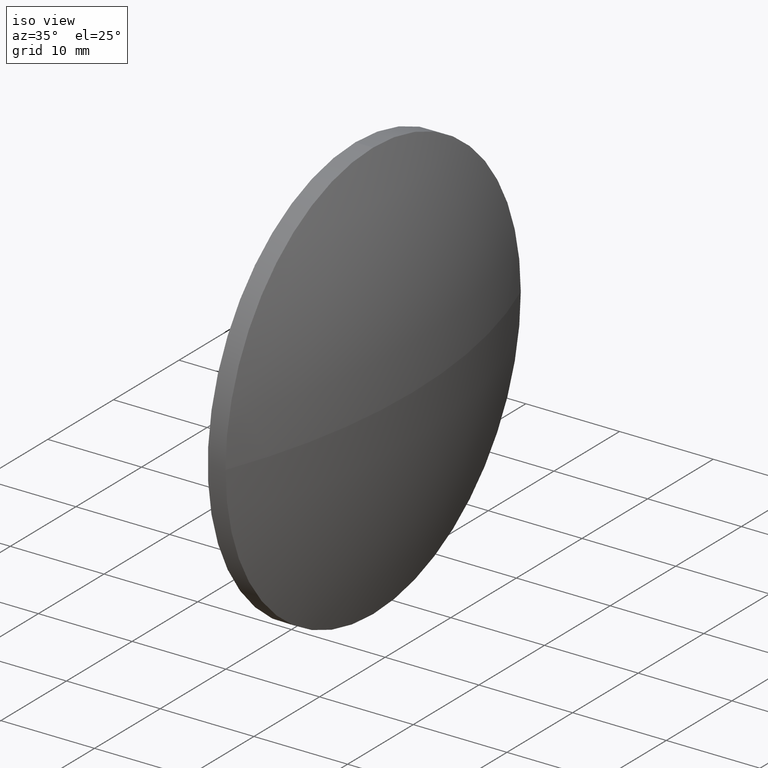
[diagram: clean part render]
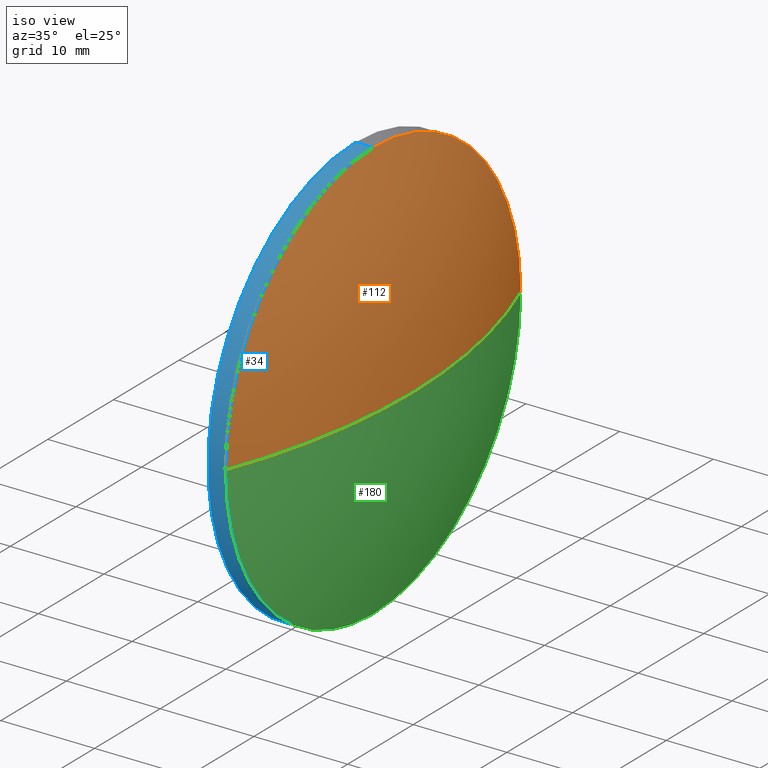
[diagram: same view with three faces highlighted in distinct colors, each labeled with its STEP entity id]
A machine part, iso view with three faces highlighted in distinct colors.
Their STEP definitions:

[orange] entity #112 — the highlighted spherical surface has radius 62.2297 mm.
#2 = AXIS2_PLACEMENT_3D ( 'NONE', #19, #32, #178 ) ;
#4 = VERTEX_POINT ( 'NONE', #144 ) ;
#8 = CIRCLE ( 'NONE', #160, 62.22970308788603000 ) ;
#12 = CARTESIAN_POINT ( 'NONE',  ( 57.18407886987994700, 65.02094537996227100, 0.0000000000000000000 ) ) ;
#19 = CARTESIAN_POINT ( 'NONE',  ( 57.18407886987994700, 65.02094537996227100, 0.0000000000000000000 ) ) ;
#25 = ORIENTED_EDGE ( 'NONE', *, *, #148, .F. ) ;
#27 = DIRECTION ( 'NONE',  ( 0.0000000000000000000, 0.0000000000000000000, 1.000000000000000000 ) ) ;
#32 = DIRECTION ( 'NONE',  ( 0.0000000000000000000, -1.224646799147353200E-016, 1.000000000000000000 ) ) ;
#41 = DIRECTION ( 'NONE',  ( 0.0000000000000000000, -1.000000000000000000, 0.0000000000000000000 ) ) ;
#43 = AXIS2_PLACEMENT_3D ( 'NONE', #66, #173, #86 ) ;
#46 = CARTESIAN_POINT ( 'NONE',  ( 57.18407886987994700, 65.02094537996227100, 0.0000000000000000000 ) ) ;
#61 = EDGE_LOOP ( 'NONE', ( #25, #126, #97, #168 ) ) ;
#66 = CARTESIAN_POINT ( 'NONE',  ( 115.2037819577659700, 65.02094537996225700, 0.0000000000000000000 ) ) ;
#69 = DIRECTION ( 'NONE',  ( -1.000000000000000000, -0.0000000000000000000, -0.0000000000000000000 ) ) ;
#82 = CIRCLE ( 'NONE', #98, 22.50000000000000700 ) ;
#84 = DIRECTION ( 'NONE',  ( 0.0000000000000000000, 0.0000000000000000000, 1.000000000000000000 ) ) ;
#86 = DIRECTION ( 'NONE',  ( 0.0000000000000000000, 0.0000000000000000000, 1.000000000000000000 ) ) ;
#91 = CARTESIAN_POINT ( 'NONE',  ( 115.2037819577659700, 42.52094537996224900, 0.0000000000000000000 ) ) ;
#97 = ORIENTED_EDGE ( 'NONE', *, *, #113, .F. ) ;
#98 = AXIS2_PLACEMENT_3D ( 'NONE', #133, #69, #84 ) ;
#102 = CARTESIAN_POINT ( 'NONE',  ( 115.2037819577659700, 65.02094537996225700, 22.50000000000000700 ) ) ;
#109 = DIRECTION ( 'NONE',  ( 0.0000000000000000000, 0.0000000000000000000, -1.000000000000000000 ) ) ;
#110 = AXIS2_PLACEMENT_3D ( 'NONE', #12, #27, #41 ) ;
#112 = ADVANCED_FACE ( 'NONE', ( #182 ), #151, .T. ) ;
#113 = EDGE_CURVE ( 'NONE', #139, #4, #116, .T. ) ;
#116 = CIRCLE ( 'NONE', #43, 22.50000000000000700 ) ;
#124 = EDGE_CURVE ( 'NONE', #141, #139, #82, .T. ) ;
#126 = ORIENTED_EDGE ( 'NONE', *, *, #181, .T. ) ;
#133 = CARTESIAN_POINT ( 'NONE',  ( 115.2037819577659700, 65.02094537996225700, 0.0000000000000000000 ) ) ;
#135 = VERTEX_POINT ( 'NONE', #143 ) ;
#139 = VERTEX_POINT ( 'NONE', #102 ) ;
#141 = VERTEX_POINT ( 'NONE', #91 ) ;
#143 = CARTESIAN_POINT ( 'NONE',  ( 119.4137819577659800, 65.02094537996227100, 0.0000000000000000000 ) ) ;
#144 = CARTESIAN_POINT ( 'NONE',  ( 115.2037819577659700, 87.52094537996227100, 2.755455298081545200E-015 ) ) ;
#148 = EDGE_CURVE ( 'NONE', #135, #141, #8, .T. ) ;
#149 = DIRECTION ( 'NONE',  ( -1.000000000000000000, 0.0000000000000000000, 0.0000000000000000000 ) ) ;
#151 = SPHERICAL_SURFACE ( 'NONE', #110, 62.22970308788603000 ) ;
#160 = AXIS2_PLACEMENT_3D ( 'NONE', #46, #109, #149 ) ;
#168 = ORIENTED_EDGE ( 'NONE', *, *, #124, .F. ) ;
#173 = DIRECTION ( 'NONE',  ( -1.000000000000000000, -0.0000000000000000000, -0.0000000000000000000 ) ) ;
#178 = DIRECTION ( 'NONE',  ( 0.0000000000000000000, -1.000000000000000000, -1.224646799147353200E-016 ) ) ;
#181 = EDGE_CURVE ( 'NONE', #135, #4, #183, .T. ) ;
#182 = FACE_OUTER_BOUND ( 'NONE', #61, .T. ) ;
#183 = CIRCLE ( 'NONE', #2, 62.22970308788603000 ) ;

[blue] entity #34 — the highlighted cylindrical surface (partial cylindrical patch) has radius 22.5 mm, axis along (-1, -0, -0).
#11 = CYLINDRICAL_SURFACE ( 'NONE', #31, 22.50000000000000700 ) ;
#13 = CARTESIAN_POINT ( 'NONE',  ( 108.6655743304436500, 65.02094537996225700, 0.0000000000000000000 ) ) ;
#31 = AXIS2_PLACEMENT_3D ( 'NONE', #13, #39, #119 ) ;
#34 = ADVANCED_FACE ( 'NONE', ( #87 ), #11, .T. ) ;
#38 = VECTOR ( 'NONE', #123, 1000.000000000000000 ) ;
#39 = DIRECTION ( 'NONE',  ( -1.000000000000000000, -0.0000000000000000000, -0.0000000000000000000 ) ) ;
#40 = CARTESIAN_POINT ( 'NONE',  ( 113.3137819577659700, 65.02094537996225700, -22.50000000000000700 ) ) ;
#45 = CARTESIAN_POINT ( 'NONE',  ( 113.3137819577659700, 65.02094537996225700, 0.0000000000000000000 ) ) ;
#52 = ORIENTED_EDGE ( 'NONE', *, *, #152, .F. ) ;
#54 = CARTESIAN_POINT ( 'NONE',  ( 113.3137819577659700, 65.02094537996225700, 22.50000000000000700 ) ) ;
#57 = DIRECTION ( 'NONE',  ( 0.0000000000000000000, 0.0000000000000000000, 1.000000000000000000 ) ) ;
#58 = ORIENTED_EDGE ( 'NONE', *, *, #124, .T. ) ;
#62 = DIRECTION ( 'NONE',  ( -1.000000000000000000, -0.0000000000000000000, -0.0000000000000000000 ) ) ;
#63 = VERTEX_POINT ( 'NONE', #118 ) ;
#68 = AXIS2_PLACEMENT_3D ( 'NONE', #134, #106, #57 ) ;
#69 = DIRECTION ( 'NONE',  ( -1.000000000000000000, -0.0000000000000000000, -0.0000000000000000000 ) ) ;
#71 = DIRECTION ( 'NONE',  ( -1.000000000000000000, -0.0000000000000000000, -0.0000000000000000000 ) ) ;
#76 = DIRECTION ( 'NONE',  ( 0.0000000000000000000, 0.0000000000000000000, 1.000000000000000000 ) ) ;
#78 = LINE ( 'NONE', #138, #38 ) ;
#82 = CIRCLE ( 'NONE', #98, 22.50000000000000700 ) ;
#84 = DIRECTION ( 'NONE',  ( 0.0000000000000000000, 0.0000000000000000000, 1.000000000000000000 ) ) ;
#87 = FACE_OUTER_BOUND ( 'NONE', #164, .T. ) ;
#88 = AXIS2_PLACEMENT_3D ( 'NONE', #45, #62, #76 ) ;
#89 = ORIENTED_EDGE ( 'NONE', *, *, #172, .F. ) ;
#90 = ORIENTED_EDGE ( 'NONE', *, *, #128, .T. ) ;
#91 = CARTESIAN_POINT ( 'NONE',  ( 115.2037819577659700, 42.52094537996224900, 0.0000000000000000000 ) ) ;
#96 = VERTEX_POINT ( 'NONE', #54 ) ;
#98 = AXIS2_PLACEMENT_3D ( 'NONE', #133, #69, #84 ) ;
#102 = CARTESIAN_POINT ( 'NONE',  ( 115.2037819577659700, 65.02094537996225700, 22.50000000000000700 ) ) ;
#106 = DIRECTION ( 'NONE',  ( -1.000000000000000000, -0.0000000000000000000, -0.0000000000000000000 ) ) ;
#111 = LINE ( 'NONE', #155, #121 ) ;
#118 = CARTESIAN_POINT ( 'NONE',  ( 115.2037819577659700, 65.02094537996225700, -22.50000000000000700 ) ) ;
#119 = DIRECTION ( 'NONE',  ( 0.0000000000000000000, 0.0000000000000000000, 1.000000000000000000 ) ) ;
#121 = VECTOR ( 'NONE', #71, 1000.000000000000000 ) ;
#123 = DIRECTION ( 'NONE',  ( -1.000000000000000000, -0.0000000000000000000, -0.0000000000000000000 ) ) ;
#124 = EDGE_CURVE ( 'NONE', #141, #139, #82, .T. ) ;
#128 = EDGE_CURVE ( 'NONE', #63, #141, #146, .T. ) ;
#129 = VERTEX_POINT ( 'NONE', #40 ) ;
#133 = CARTESIAN_POINT ( 'NONE',  ( 115.2037819577659700, 65.02094537996225700, 0.0000000000000000000 ) ) ;
#134 = CARTESIAN_POINT ( 'NONE',  ( 115.2037819577659700, 65.02094537996225700, 0.0000000000000000000 ) ) ;
#137 = EDGE_CURVE ( 'NONE', #139, #96, #111, .T. ) ;
#138 = CARTESIAN_POINT ( 'NONE',  ( 108.6655743304436500, 65.02094537996225700, -22.50000000000000700 ) ) ;
#139 = VERTEX_POINT ( 'NONE', #102 ) ;
#141 = VERTEX_POINT ( 'NONE', #91 ) ;
#146 = CIRCLE ( 'NONE', #68, 22.50000000000000700 ) ;
#152 = EDGE_CURVE ( 'NONE', #129, #96, #153, .T. ) ;
#153 = CIRCLE ( 'NONE', #88, 22.50000000000000700 ) ;
#155 = CARTESIAN_POINT ( 'NONE',  ( 108.6655743304436500, 65.02094537996225700, 22.50000000000000700 ) ) ;
#164 = EDGE_LOOP ( 'NONE', ( #89, #90, #58, #167, #52 ) ) ;
#167 = ORIENTED_EDGE ( 'NONE', *, *, #137, .T. ) ;
#172 = EDGE_CURVE ( 'NONE', #63, #129, #78, .T. ) ;

[green] entity #180 — the highlighted spherical surface has radius 62.2297 mm.
#2 = AXIS2_PLACEMENT_3D ( 'NONE', #19, #32, #178 ) ;
#4 = VERTEX_POINT ( 'NONE', #144 ) ;
#6 = AXIS2_PLACEMENT_3D ( 'NONE', #55, #26, #130 ) ;
#8 = CIRCLE ( 'NONE', #160, 62.22970308788603000 ) ;
#10 = EDGE_CURVE ( 'NONE', #4, #63, #125, .T. ) ;
#19 = CARTESIAN_POINT ( 'NONE',  ( 57.18407886987994700, 65.02094537996227100, 0.0000000000000000000 ) ) ;
#26 = DIRECTION ( 'NONE',  ( -1.000000000000000000, -0.0000000000000000000, -0.0000000000000000000 ) ) ;
#32 = DIRECTION ( 'NONE',  ( 0.0000000000000000000, -1.224646799147353200E-016, 1.000000000000000000 ) ) ;
#46 = CARTESIAN_POINT ( 'NONE',  ( 57.18407886987994700, 65.02094537996227100, 0.0000000000000000000 ) ) ;
#48 = ORIENTED_EDGE ( 'NONE', *, *, #181, .F. ) ;
#50 = ORIENTED_EDGE ( 'NONE', *, *, #148, .T. ) ;
#55 = CARTESIAN_POINT ( 'NONE',  ( 115.2037819577659700, 65.02094537996225700, 0.0000000000000000000 ) ) ;
#57 = DIRECTION ( 'NONE',  ( 0.0000000000000000000, 0.0000000000000000000, 1.000000000000000000 ) ) ;
#63 = VERTEX_POINT ( 'NONE', #118 ) ;
#64 = SPHERICAL_SURFACE ( 'NONE', #127, 62.22970308788603000 ) ;
#68 = AXIS2_PLACEMENT_3D ( 'NONE', #134, #106, #57 ) ;
#72 = FACE_OUTER_BOUND ( 'NONE', #175, .T. ) ;
#77 = DIRECTION ( 'NONE',  ( 0.0000000000000000000, 0.0000000000000000000, 1.000000000000000000 ) ) ;
#91 = CARTESIAN_POINT ( 'NONE',  ( 115.2037819577659700, 42.52094537996224900, 0.0000000000000000000 ) ) ;
#93 = DIRECTION ( 'NONE',  ( 0.0000000000000000000, -1.000000000000000000, 0.0000000000000000000 ) ) ;
#106 = DIRECTION ( 'NONE',  ( -1.000000000000000000, -0.0000000000000000000, -0.0000000000000000000 ) ) ;
#109 = DIRECTION ( 'NONE',  ( 0.0000000000000000000, 0.0000000000000000000, -1.000000000000000000 ) ) ;
#118 = CARTESIAN_POINT ( 'NONE',  ( 115.2037819577659700, 65.02094537996225700, -22.50000000000000700 ) ) ;
#125 = CIRCLE ( 'NONE', #6, 22.50000000000000700 ) ;
#127 = AXIS2_PLACEMENT_3D ( 'NONE', #162, #77, #93 ) ;
#128 = EDGE_CURVE ( 'NONE', #63, #141, #146, .T. ) ;
#130 = DIRECTION ( 'NONE',  ( 0.0000000000000000000, 0.0000000000000000000, 1.000000000000000000 ) ) ;
#134 = CARTESIAN_POINT ( 'NONE',  ( 115.2037819577659700, 65.02094537996225700, 0.0000000000000000000 ) ) ;
#135 = VERTEX_POINT ( 'NONE', #143 ) ;
#140 = ORIENTED_EDGE ( 'NONE', *, *, #10, .F. ) ;
#141 = VERTEX_POINT ( 'NONE', #91 ) ;
#143 = CARTESIAN_POINT ( 'NONE',  ( 119.4137819577659800, 65.02094537996227100, 0.0000000000000000000 ) ) ;
#144 = CARTESIAN_POINT ( 'NONE',  ( 115.2037819577659700, 87.52094537996227100, 2.755455298081545200E-015 ) ) ;
#146 = CIRCLE ( 'NONE', #68, 22.50000000000000700 ) ;
#148 = EDGE_CURVE ( 'NONE', #135, #141, #8, .T. ) ;
#149 = DIRECTION ( 'NONE',  ( -1.000000000000000000, 0.0000000000000000000, 0.0000000000000000000 ) ) ;
#159 = ORIENTED_EDGE ( 'NONE', *, *, #128, .F. ) ;
#160 = AXIS2_PLACEMENT_3D ( 'NONE', #46, #109, #149 ) ;
#162 = CARTESIAN_POINT ( 'NONE',  ( 57.18407886987994700, 65.02094537996227100, 0.0000000000000000000 ) ) ;
#175 = EDGE_LOOP ( 'NONE', ( #48, #50, #159, #140 ) ) ;
#178 = DIRECTION ( 'NONE',  ( 0.0000000000000000000, -1.000000000000000000, -1.224646799147353200E-016 ) ) ;
#180 = ADVANCED_FACE ( 'NONE', ( #72 ), #64, .T. ) ;
#181 = EDGE_CURVE ( 'NONE', #135, #4, #183, .T. ) ;
#183 = CIRCLE ( 'NONE', #2, 62.22970308788603000 ) ;